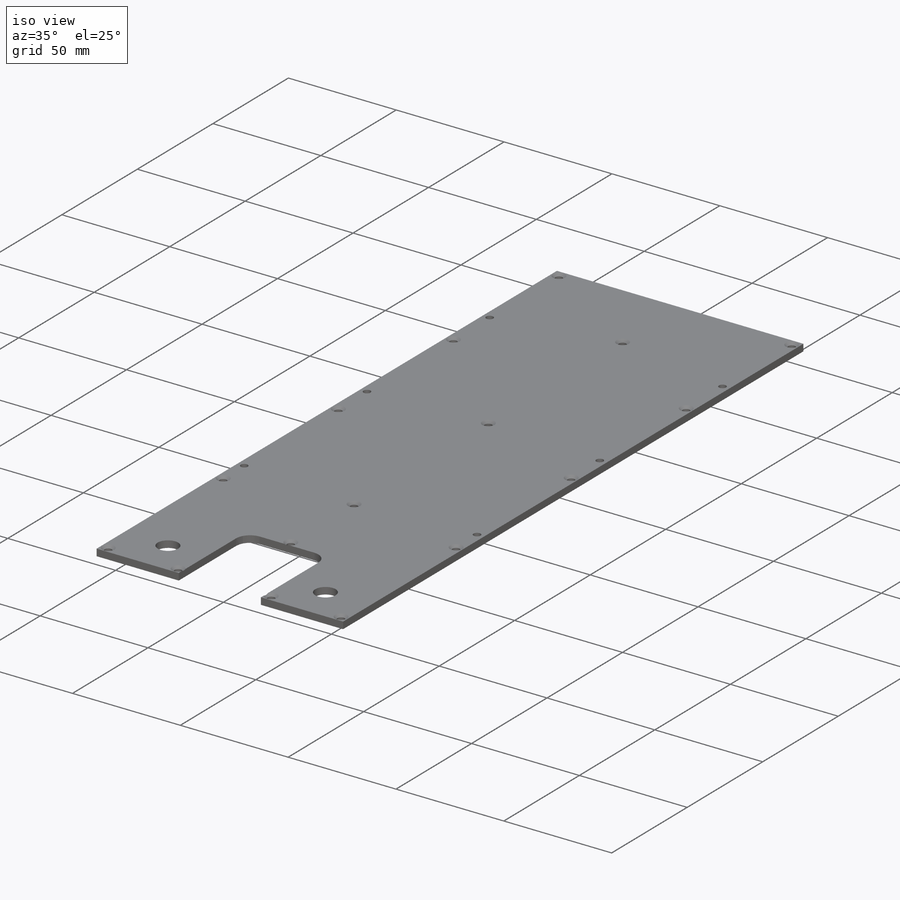
[diagram: iso view]
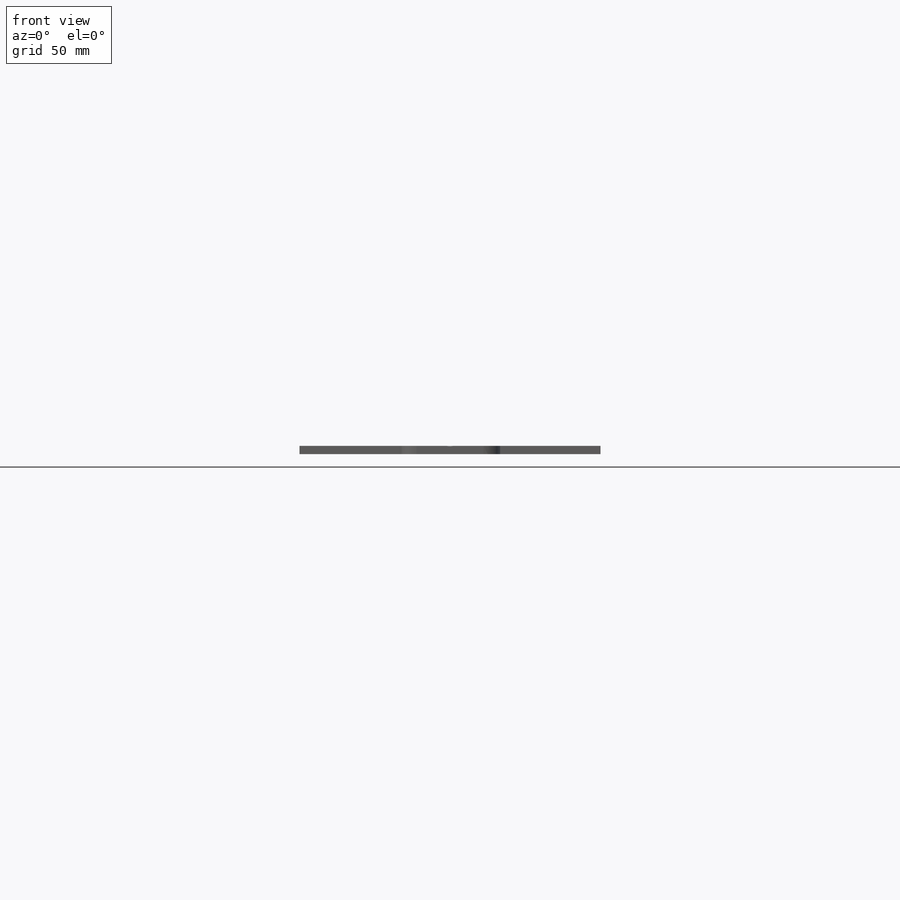
[diagram: front view]
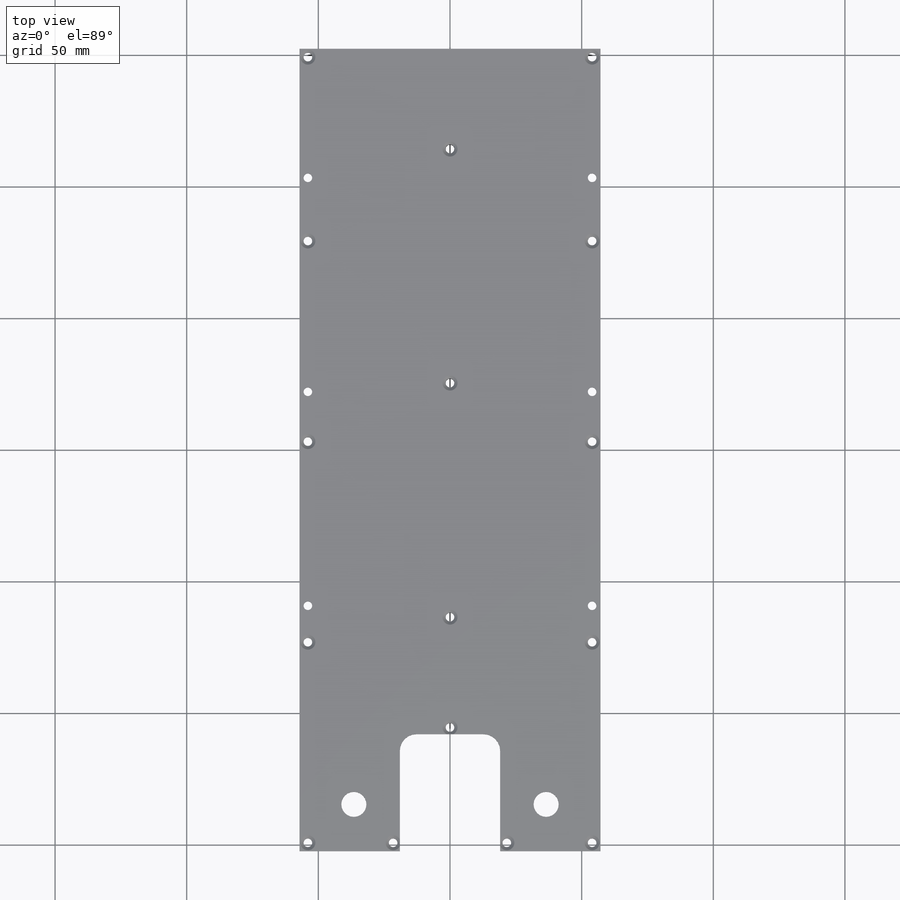
[diagram: top view]
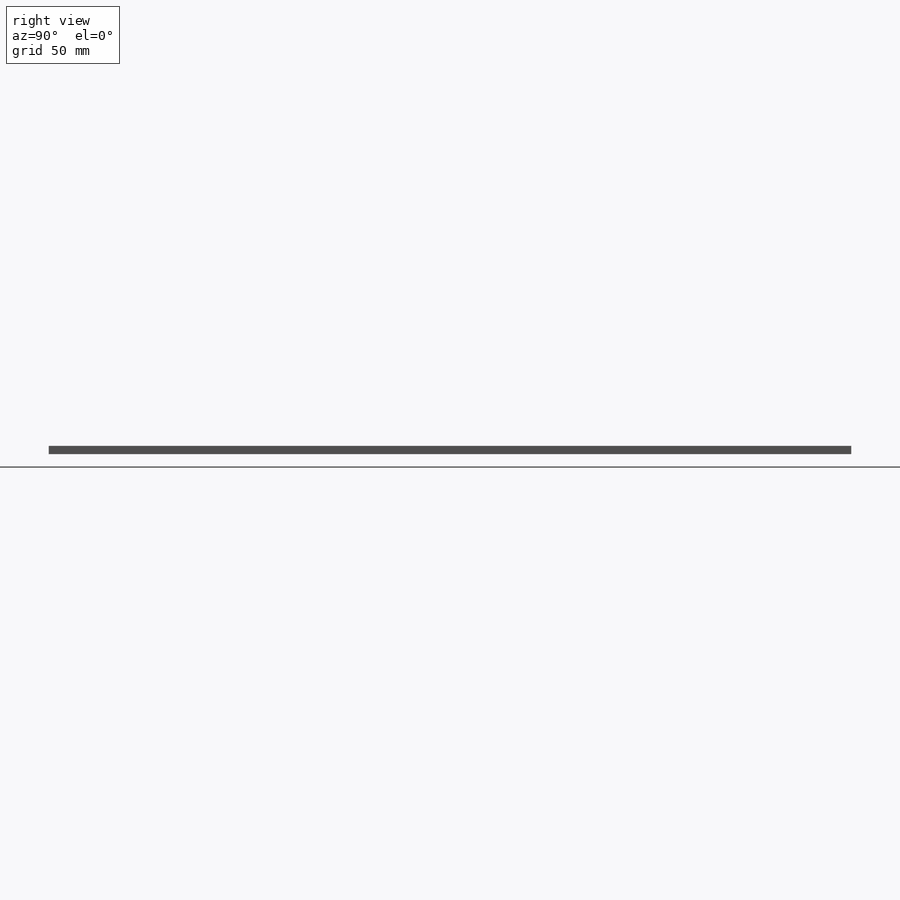
[diagram: right view]
SOLIDWORKS PART (.sldprt)
format: sldprt  version: not decoded by parser v0  size: 341,504 bytes
history: native  units: mm
features: sketch x7, hole x2, fillet x2, cut_extrude x2, material x1, extrude x1 (+11 scaffold rows collapsed)
feature tree (26):
  scaffold x11  (default folders/planes/origin — collapsed)
  material  "6061 Alloy"
  sketch  "Sketch1"  dims[D1=114.3mm D2=323.85mm D3=38.1mm D4=38.1mm D5=63.5mm D6=57.15mm D7=152.4mm]
  extrude  "Extrude1"  Depth=3.175mm
  hole  "CSK for #4 Flat Head Machine Screw (100)1"  Diameter=3.2639mm Depth=3.175mm
  sketch  "3DSketch1"  dims[c1.D1=3.175mm c1.D2=3.175mm c1.D3=3.175mm c1.D4=~2.839173mm c1.D9=28.575mm c1.D5=76.2mm c1.D6=76.2mm c1.D7=76.2mm c1.D8=57.15mm c2.D9=76.2mm c3.D9=~76.010392mm c3.D13=38.1mm c3.D10=~3.550378mm c3.D8=2.54mm c3.D11=~3.621639mm c4.D8=3.175mm c4.D12=~36.707318mm c4.D11=196.85mm c4.D13=41.275mm c4.D14=41.275mm c5.D8=76.2mm c5.D4=76.2mm c6.D4=69.85mm c6.D8=2.54mm c6.D9=2.54mm c6.D10=2.54mm c6.D11=38.1mm c6.D12=88.9mm c6.D13=88.9mm]
  sketch  "Sketch3"  dims[hole-wizard template sketch: 55 standard entries collapsed; hole parameters kept: c17.Thru Hole Depth=3.175mm c17.Near C'Sink Dia.=5.715mm c17.D4=~3.666174mm c17.Near C'Sink Angle=100.0deg]
  fillet  "Fillet1"  Radius=6.35mm
  fillet  "Fillet2"  Radius=6.35mm
  sketch  "Sketch4"  dims[c1.D1=20.32mm c1.D2=36.83mm c1.D3=20.32mm c1.D4=17.78mm c2.D1=20.6375mm c2.D3=20.6375mm]
  cut_extrude  "Cut-Extrude1"  [1 undecoded]
  sketch  "Sketch5"  dims[D1=19.05mm]
  cut_extrude  "Cut-Extrude2"  [1 undecoded]
  hole  "#4 Clearance Hole1"  Diameter=3.2639mm Depth=6.35mm
  sketch  "3DSketch2"  dims[D1=49.022mm D2=3.175mm D3=3.175mm D4=81.28mm D5=81.28mm]
  sketch  "Sketch6"  dims[hole-wizard template sketch: 47 standard entries collapsed; hole parameters kept: c15.Hole Depth=6.35mm c15.D3=~14.816244mm c15.Drill Angle=118.0deg]
decode coverage: 12 of 14 modeling features carry decoded parameters
note: ~ marks probable driven/reference dimensions
note: 2 parameter values undecoded
note: suppression state not decoded; provenance and decode notes live in map.json
